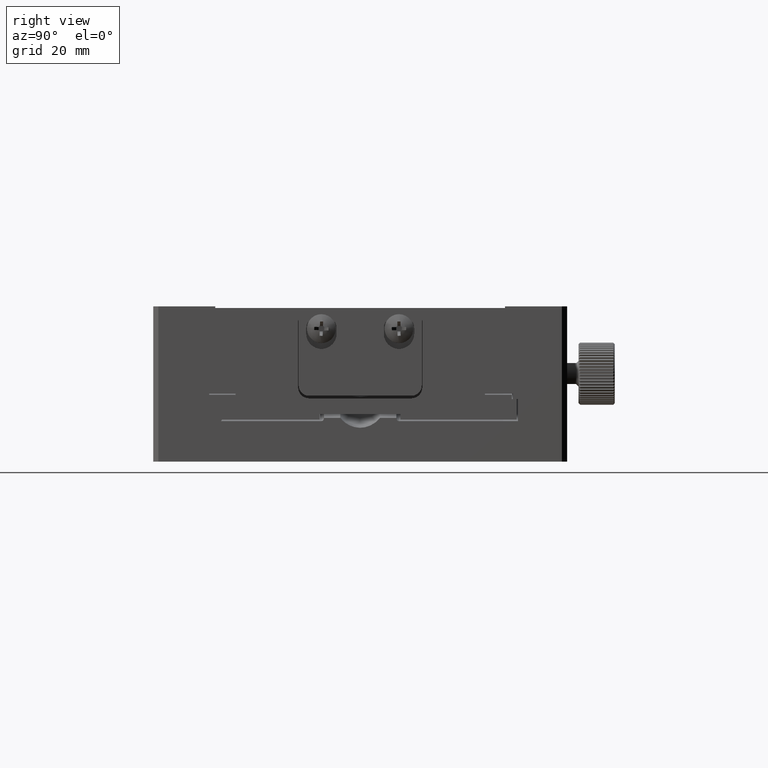
[diagram: clean part render]
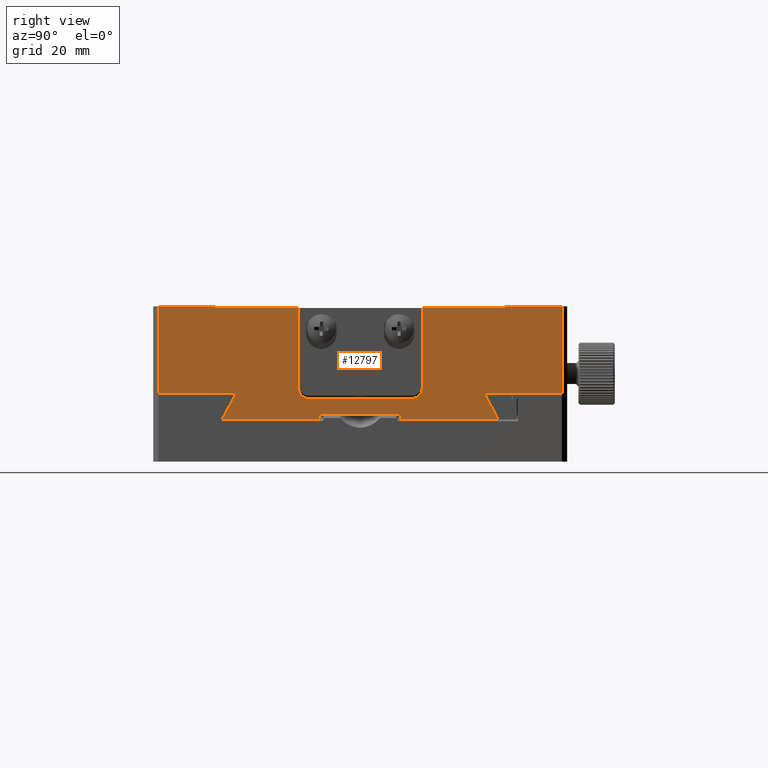
[diagram: same view with one face highlighted and labeled with its STEP entity id]
A machine part, right view. The second image highlights one B-rep face of the part: STEP entity #12797.
In plain terms, the highlighted planar face has unit normal (-1, 0, 0).
Its self-contained STEP definition (entity closure, byte-faithful):
#101 = CARTESIAN_POINT ( 'NONE',  ( 40.00000000000000000, 12.00000000000000355, 90.00000000000001421 ) ) ;
#330 = VECTOR ( 'NONE', #50406, 1000.000000000000000 ) ;
#1248 = CARTESIAN_POINT ( 'NONE',  ( 40.00000000000000000, 24.00000000000001421, 113.1370849898476223 ) ) ;
#1259 = ORIENTED_EDGE ( 'NONE', *, *, #34641, .F. ) ;
#1617 = VERTEX_POINT ( 'NONE', #42292 ) ;
#2359 = EDGE_CURVE ( 'NONE', #38159, #36835, #23862, .T. ) ;
#2661 = ORIENTED_EDGE ( 'NONE', *, *, #77425, .F. ) ;
#2670 = ORIENTED_EDGE ( 'NONE', *, *, #13924, .F. ) ;
#4132 = ORIENTED_EDGE ( 'NONE', *, *, #54658, .F. ) ;
#4548 = DIRECTION ( 'NONE',  ( -0.000000000000000000, -1.000000000000000000, 0.000000000000000000 ) ) ;
#5288 = ORIENTED_EDGE ( 'NONE', *, *, #64259, .F. ) ;
#5879 = VERTEX_POINT ( 'NONE', #44844 ) ;
#5979 = DIRECTION ( 'NONE',  ( 0.000000000000000000, 1.000000000000000000, -0.000000000000000000 ) ) ;
#7979 = VECTOR ( 'NONE', #16076, 1000.000000000000000 ) ;
#9200 = CARTESIAN_POINT ( 'NONE',  ( 40.00000000000000000, -39.99999999999998579, 108.1392158284865701 ) ) ;
#9380 = B_SPLINE_CURVE_WITH_KNOTS ( 'NONE', 3,
 ( #45992, #33275, #31916, #54124 ),
 .UNSPECIFIED., .F., .F.,
 ( 4, 4 ),
 ( 0.000000000000000000, 0.005687005318040170773 ),
 .UNSPECIFIED. ) ;
#9669 = LINE ( 'NONE', #9200, #57864 ) ;
#10589 = CARTESIAN_POINT ( 'NONE',  ( 40.00000000000000000, 39.00000000000000711, 113.1370849898476223 ) ) ;
#10722 = EDGE_CURVE ( 'NONE', #17061, #86930, #53438, .T. ) ;
#11202 = VERTEX_POINT ( 'NONE', #20922 ) ;
#11369 = CARTESIAN_POINT ( 'NONE',  ( 40.00000000000000000, -39.99999999999998579, 109.2048075864794185 ) ) ;
#11458 = ORIENTED_EDGE ( 'NONE', *, *, #53308, .F. ) ;
#12171 = EDGE_CURVE ( 'NONE', #68739, #11202, #34589, .T. ) ;
#12482 = EDGE_LOOP ( 'NONE', ( #71743, #42520, #72628, #4132, #37822, #44977, #14948, #1259, #30182, #81857, #51012, #47749, #11458, #22594, #28148, #2661, #38043, #77541, #65836, #32022, #2670, #5288 ) ) ;
#12797 = ADVANCED_FACE ( 'NONE', ( #49195 ), #22426, .F. ) ;
#13110 = CARTESIAN_POINT ( 'NONE',  ( 40.00000000000000711, 9.899999999999998579, 114.3000000000000114 ) ) ;
#13924 = EDGE_CURVE ( 'NONE', #30394, #82356, #16933, .T. ) ;
#14480 = CARTESIAN_POINT ( 'NONE',  ( 40.00000000000000000, 39.00000000000001421, 90.00000000000001421 ) ) ;
#14948 = ORIENTED_EDGE ( 'NONE', *, *, #63549, .F. ) ;
#15482 = CARTESIAN_POINT ( 'NONE',  ( 40.00000000000000000, 24.00000000000001421, 113.1370849898476223 ) ) ;
#15638 = AXIS2_PLACEMENT_3D ( 'NONE', #60000, #26447, #75823 ) ;
#16076 = DIRECTION ( 'NONE',  ( -0.000000000000000000, 0.000000000000000000, 1.000000000000000000 ) ) ;
#16424 = VECTOR ( 'NONE', #85017, 1000.000000000000000 ) ;
#16933 = LINE ( 'NONE', #44633, #26561 ) ;
#17061 = VERTEX_POINT ( 'NONE', #41828 ) ;
#17495 = VECTOR ( 'NONE', #21308, 1000.000000000000000 ) ;
#17724 = EDGE_CURVE ( 'NONE', #18715, #70894, #67724, .T. ) ;
#17739 = LINE ( 'NONE', #11369, #53039 ) ;
#18715 = VERTEX_POINT ( 'NONE', #32119 ) ;
#18850 = CARTESIAN_POINT ( 'NONE',  ( 40.00000000000000000, -39.99999999999998579, 130.0000000000000000 ) ) ;
#19611 = CARTESIAN_POINT ( 'NONE',  ( 40.00000000000000000, -39.99999999999998579, 130.0000000000000000 ) ) ;
#20657 = CARTESIAN_POINT ( 'NONE',  ( 40.00000000000000711, 6.938893903907228378E-15, 129.7000000000000171 ) ) ;
#20922 = CARTESIAN_POINT ( 'NONE',  ( 40.00000000000000000, 12.00000000000000355, 129.7000000000000171 ) ) ;
#21308 = DIRECTION ( 'NONE',  ( -0.000000000000000000, 0.000000000000000000, 1.000000000000000000 ) ) ;
#21589 = EDGE_CURVE ( 'NONE', #78508, #81294, #77701, .T. ) ;
#22193 = DIRECTION ( 'NONE',  ( -0.000000000000000000, -1.000000000000000000, 0.000000000000000000 ) ) ;
#22426 = PLANE ( 'NONE',  #36615 ) ;
#22594 = ORIENTED_EDGE ( 'NONE', *, *, #47933, .F. ) ;
#23811 = VECTOR ( 'NONE', #81695, 1000.000000000000000 ) ;
#23862 = B_SPLINE_CURVE_WITH_KNOTS ( 'NONE', 3,
 ( #1248, #28927, #36192, #57907 ),
 .UNSPECIFIED., .F., .F.,
 ( 4, 4 ),
 ( 1.551583845779545699E-17, 0.005687005318040152559 ),
 .UNSPECIFIED. ) ;
#24568 = EDGE_CURVE ( 'NONE', #57780, #5879, #76362, .T. ) ;
#25325 = DIRECTION ( 'NONE',  ( 0.000000000000000000, 1.000000000000000000, -0.000000000000000000 ) ) ;
#25746 = CARTESIAN_POINT ( 'NONE',  ( 40.00000000000000000, 28.00000000000001776, 129.7000000000000171 ) ) ;
#25859 = DIRECTION ( 'NONE',  ( 1.000000000000000000, 0.000000000000000000, 0.000000000000000000 ) ) ;
#26017 = LINE ( 'NONE', #79982, #58206 ) ;
#26447 = DIRECTION ( 'NONE',  ( 1.000000000000000000, -0.000000000000000000, -0.000000000000000000 ) ) ;
#26561 = VECTOR ( 'NONE', #38250, 1000.000000000000000 ) ;
#28148 = ORIENTED_EDGE ( 'NONE', *, *, #12171, .F. ) ;
#28927 = CARTESIAN_POINT ( 'NONE',  ( 40.00000000000000000, 24.90630286100780211, 111.4721003184273798 ) ) ;
#30182 = ORIENTED_EDGE ( 'NONE', *, *, #2359, .F. ) ;
#30394 = VERTEX_POINT ( 'NONE', #56761 ) ;
#30751 = VERTEX_POINT ( 'NONE', #64928 ) ;
#31127 = VECTOR ( 'NONE', #69576, 1000.000000000000000 ) ;
#31916 = CARTESIAN_POINT ( 'NONE',  ( 40.00000000000000000, -24.90630286100778434, 111.4721003184273940 ) ) ;
#32022 = ORIENTED_EDGE ( 'NONE', *, *, #57174, .F. ) ;
#32119 = CARTESIAN_POINT ( 'NONE',  ( 40.00000000000000000, 28.00000000000001421, 130.0000000000000000 ) ) ;
#32599 = CARTESIAN_POINT ( 'NONE',  ( 40.00000000000000000, -39.99999999999998579, 112.2000000000000028 ) ) ;
#33195 = LINE ( 'NONE', #60846, #23811 ) ;
#33275 = CARTESIAN_POINT ( 'NONE',  ( 40.00000000000000000, -25.81089446767058959, 109.8061827040926772 ) ) ;
#33503 = VECTOR ( 'NONE', #25325, 1000.000000000000000 ) ;
#34589 = LINE ( 'NONE', #101, #330 ) ;
#34641 = EDGE_CURVE ( 'NONE', #36835, #68497, #9669, .T. ) ;
#34945 = CARTESIAN_POINT ( 'NONE',  ( 40.00000000000000711, 12.00000000000000000, 114.3000000000000114 ) ) ;
#35106 = EDGE_CURVE ( 'NONE', #70894, #73354, #55299, .T. ) ;
#35616 = DIRECTION ( 'NONE',  ( -1.000000000000000000, 0.000000000000000000, 0.000000000000000000 ) ) ;
#36192 = CARTESIAN_POINT ( 'NONE',  ( 40.00000000000000000, 25.81089446767060025, 109.8061827040926772 ) ) ;
#36615 = AXIS2_PLACEMENT_3D ( 'NONE', #84092, #35616, #63285 ) ;
#36835 = VERTEX_POINT ( 'NONE', #73658 ) ;
#36843 = CARTESIAN_POINT ( 'NONE',  ( 40.00000000000000000, 7.800000000000013145, 108.1392158284865701 ) ) ;
#36891 = DIRECTION ( 'NONE',  ( -0.000000000000000000, -0.000000000000000000, -1.000000000000000000 ) ) ;
#37822 = ORIENTED_EDGE ( 'NONE', *, *, #39444, .F. ) ;
#37850 = VECTOR ( 'NONE', #88237, 1000.000000000000000 ) ;
#38043 = ORIENTED_EDGE ( 'NONE', *, *, #10722, .F. ) ;
#38159 = VERTEX_POINT ( 'NONE', #15482 ) ;
#38250 = DIRECTION ( 'NONE',  ( -0.000000000000000000, -0.000000000000000000, -1.000000000000000000 ) ) ;
#38727 = DIRECTION ( 'NONE',  ( -0.000000000000000000, 1.000000000000000000, 0.000000000000000000 ) ) ;
#39408 = VECTOR ( 'NONE', #48332, 1000.000000000000000 ) ;
#39444 = EDGE_CURVE ( 'NONE', #1617, #30751, #33195, .T. ) ;
#39638 = VECTOR ( 'NONE', #36891, 1000.000000000000000 ) ;
#40805 = VERTEX_POINT ( 'NONE', #25746 ) ;
#41716 = EDGE_CURVE ( 'NONE', #73354, #38159, #83079, .T. ) ;
#41828 = CARTESIAN_POINT ( 'NONE',  ( 40.00000000000000711, -9.899999999999998579, 112.2000000000000028 ) ) ;
#41924 = CARTESIAN_POINT ( 'NONE',  ( 40.00000000000000000, -38.99999999999996447, 90.00000000000001421 ) ) ;
#42286 = DIRECTION ( 'NONE',  ( -0.000000000000000000, -1.000000000000000000, 0.000000000000000000 ) ) ;
#42292 = CARTESIAN_POINT ( 'NONE',  ( 40.00000000000000000, -7.799999999999986500, 109.2048075864794185 ) ) ;
#42520 = ORIENTED_EDGE ( 'NONE', *, *, #77903, .F. ) ;
#44429 = CARTESIAN_POINT ( 'NONE',  ( 40.00000000000000000, -26.71354626519124054, 108.1392158284865701 ) ) ;
#44633 = CARTESIAN_POINT ( 'NONE',  ( 40.00000000000000000, -27.99999999999999645, 90.00000000000001421 ) ) ;
#44844 = CARTESIAN_POINT ( 'NONE',  ( 40.00000000000000000, -38.99999999999996447, 130.0000000000000000 ) ) ;
#44977 = ORIENTED_EDGE ( 'NONE', *, *, #55046, .F. ) ;
#45457 = AXIS2_PLACEMENT_3D ( 'NONE', #13110, #25859, #82066 ) ;
#45992 = CARTESIAN_POINT ( 'NONE',  ( 40.00000000000000000, -26.71354626519124054, 108.1392158284865701 ) ) ;
#47749 = ORIENTED_EDGE ( 'NONE', *, *, #17724, .F. ) ;
#47897 = EDGE_CURVE ( 'NONE', #67664, #53159, #9380, .T. ) ;
#47933 = EDGE_CURVE ( 'NONE', #11202, #40805, #26017, .T. ) ;
#48225 = CARTESIAN_POINT ( 'NONE',  ( 40.00000000000000711, -38.99999999999996447, 113.1370849898476223 ) ) ;
#48332 = DIRECTION ( 'NONE',  ( -0.000000000000000000, 1.000000000000000000, 0.000000000000000000 ) ) ;
#48428 = CARTESIAN_POINT ( 'NONE',  ( 40.00000000000000000, 28.00000000000001776, 129.7000000000000171 ) ) ;
#49195 = FACE_OUTER_BOUND ( 'NONE', #12482, .T. ) ;
#49396 = DIRECTION ( 'NONE',  ( -0.000000000000000000, -0.000000000000000000, -1.000000000000000000 ) ) ;
#50406 = DIRECTION ( 'NONE',  ( 0.000000000000000000, 0.000000000000000000, 1.000000000000000000 ) ) ;
#50460 = CARTESIAN_POINT ( 'NONE',  ( 40.00000000000000711, -12.00000000000000000, 114.3000000000000114 ) ) ;
#50546 = LINE ( 'NONE', #48428, #7979 ) ;
#50962 = EDGE_CURVE ( 'NONE', #81294, #17061, #73496, .T. ) ;
#51012 = ORIENTED_EDGE ( 'NONE', *, *, #35106, .F. ) ;
#53039 = VECTOR ( 'NONE', #4548, 1000.000000000000000 ) ;
#53159 = VERTEX_POINT ( 'NONE', #73846 ) ;
#53308 = EDGE_CURVE ( 'NONE', #40805, #18715, #50546, .T. ) ;
#53438 = LINE ( 'NONE', #32599, #33503 ) ;
#54124 = CARTESIAN_POINT ( 'NONE',  ( 40.00000000000000711, -24.00000000000000000, 113.1370849898476223 ) ) ;
#54250 = LINE ( 'NONE', #20657, #39408 ) ;
#54584 = CARTESIAN_POINT ( 'NONE',  ( 40.00000000000000711, 9.899999999999998579, 112.2000000000000028 ) ) ;
#54658 = EDGE_CURVE ( 'NONE', #30751, #67664, #78856, .T. ) ;
#55046 = EDGE_CURVE ( 'NONE', #72604, #1617, #17739, .T. ) ;
#55299 = LINE ( 'NONE', #14480, #72410 ) ;
#55776 = CARTESIAN_POINT ( 'NONE',  ( 40.00000000000000000, 7.800000000000013145, -115.2999999999999972 ) ) ;
#56761 = CARTESIAN_POINT ( 'NONE',  ( 40.00000000000000711, -27.99999999999999645, 130.0000000000000000 ) ) ;
#57114 = CARTESIAN_POINT ( 'NONE',  ( 40.00000000000000000, -39.99999999999998579, 108.1392158284865701 ) ) ;
#57174 = EDGE_CURVE ( 'NONE', #82356, #78508, #54250, .T. ) ;
#57780 = VERTEX_POINT ( 'NONE', #48225 ) ;
#57864 = VECTOR ( 'NONE', #78602, 1000.000000000000000 ) ;
#57907 = CARTESIAN_POINT ( 'NONE',  ( 40.00000000000000000, 26.71354626519124409, 108.1392158284865701 ) ) ;
#58206 = VECTOR ( 'NONE', #38727, 1000.000000000000000 ) ;
#60000 = CARTESIAN_POINT ( 'NONE',  ( 40.00000000000000711, -9.899999999999998579, 114.3000000000000114 ) ) ;
#60210 = VECTOR ( 'NONE', #42286, 1000.000000000000000 ) ;
#60846 = CARTESIAN_POINT ( 'NONE',  ( 40.00000000000000000, -7.799999999999985612, -115.2999999999999972 ) ) ;
#62600 = LINE ( 'NONE', #55776, #17495 ) ;
#62699 = CARTESIAN_POINT ( 'NONE',  ( 40.00000000000000000, -39.99999999999998579, 113.1370849898476223 ) ) ;
#63285 = DIRECTION ( 'NONE',  ( 0.000000000000000000, 0.000000000000000000, 1.000000000000000000 ) ) ;
#63549 = EDGE_CURVE ( 'NONE', #68497, #72604, #62600, .T. ) ;
#64259 = EDGE_CURVE ( 'NONE', #5879, #30394, #80971, .T. ) ;
#64621 = VECTOR ( 'NONE', #22193, 1000.000000000000000 ) ;
#64862 = CARTESIAN_POINT ( 'NONE',  ( 40.00000000000000000, -12.00000000000000000, 129.7000000000000171 ) ) ;
#64928 = CARTESIAN_POINT ( 'NONE',  ( 40.00000000000000000, -7.799999999999985612, 108.1392158284865701 ) ) ;
#65706 = CARTESIAN_POINT ( 'NONE',  ( 40.00000000000000000, 39.00000000000001421, 130.0000000000000000 ) ) ;
#65836 = ORIENTED_EDGE ( 'NONE', *, *, #21589, .F. ) ;
#67150 = CIRCLE ( 'NONE', #45457, 2.100000000000004530 ) ;
#67664 = VERTEX_POINT ( 'NONE', #44429 ) ;
#67724 = LINE ( 'NONE', #19611, #87709 ) ;
#68497 = VERTEX_POINT ( 'NONE', #36843 ) ;
#68739 = VERTEX_POINT ( 'NONE', #34945 ) ;
#69576 = DIRECTION ( 'NONE',  ( 0.000000000000000000, 0.000000000000000000, 1.000000000000000000 ) ) ;
#70894 = VERTEX_POINT ( 'NONE', #65706 ) ;
#71740 = CARTESIAN_POINT ( 'NONE',  ( 40.00000000000000000, 7.800000000000014033, 109.2048075864794185 ) ) ;
#71743 = ORIENTED_EDGE ( 'NONE', *, *, #24568, .F. ) ;
#71764 = CARTESIAN_POINT ( 'NONE',  ( 40.00000000000000711, -27.99999999999999645, 129.7000000000000171 ) ) ;
#71857 = LINE ( 'NONE', #78202, #16424 ) ;
#72410 = VECTOR ( 'NONE', #49396, 1000.000000000000000 ) ;
#72604 = VERTEX_POINT ( 'NONE', #71740 ) ;
#72628 = ORIENTED_EDGE ( 'NONE', *, *, #47897, .F. ) ;
#73354 = VERTEX_POINT ( 'NONE', #10589 ) ;
#73496 = CIRCLE ( 'NONE', #15638, 2.100000000000004530 ) ;
#73658 = CARTESIAN_POINT ( 'NONE',  ( 40.00000000000000000, 26.71354626519124409, 108.1392158284865701 ) ) ;
#73846 = CARTESIAN_POINT ( 'NONE',  ( 40.00000000000000711, -24.00000000000000000, 113.1370849898476223 ) ) ;
#75823 = DIRECTION ( 'NONE',  ( 0.000000000000000000, 0.000000000000000000, 1.000000000000000000 ) ) ;
#76362 = LINE ( 'NONE', #41924, #31127 ) ;
#77425 = EDGE_CURVE ( 'NONE', #86930, #68739, #67150, .T. ) ;
#77541 = ORIENTED_EDGE ( 'NONE', *, *, #50962, .F. ) ;
#77701 = LINE ( 'NONE', #84946, #39638 ) ;
#77903 = EDGE_CURVE ( 'NONE', #53159, #57780, #71857, .T. ) ;
#78202 = CARTESIAN_POINT ( 'NONE',  ( 40.00000000000000711, 0.000000000000000000, 113.1370849898476223 ) ) ;
#78508 = VERTEX_POINT ( 'NONE', #64862 ) ;
#78602 = DIRECTION ( 'NONE',  ( -0.000000000000000000, -1.000000000000000000, 0.000000000000000000 ) ) ;
#78856 = LINE ( 'NONE', #57114, #64621 ) ;
#79982 = CARTESIAN_POINT ( 'NONE',  ( 40.00000000000000000, 6.938893903907228378E-15, 129.7000000000000171 ) ) ;
#80971 = LINE ( 'NONE', #18850, #37850 ) ;
#81294 = VERTEX_POINT ( 'NONE', #50460 ) ;
#81695 = DIRECTION ( 'NONE',  ( -0.000000000000000000, 0.000000000000000000, -1.000000000000000000 ) ) ;
#81857 = ORIENTED_EDGE ( 'NONE', *, *, #41716, .F. ) ;
#82066 = DIRECTION ( 'NONE',  ( 0.000000000000000000, 0.000000000000000000, -1.000000000000000000 ) ) ;
#82356 = VERTEX_POINT ( 'NONE', #71764 ) ;
#83079 = LINE ( 'NONE', #62699, #60210 ) ;
#84092 = CARTESIAN_POINT ( 'NONE',  ( 40.00000000000000000, -39.99999999999998579, 90.00000000000001421 ) ) ;
#84946 = CARTESIAN_POINT ( 'NONE',  ( 40.00000000000000000, -12.00000000000000000, 90.00000000000001421 ) ) ;
#85017 = DIRECTION ( 'NONE',  ( -0.000000000000000000, -1.000000000000000000, -0.000000000000000000 ) ) ;
#86930 = VERTEX_POINT ( 'NONE', #54584 ) ;
#87709 = VECTOR ( 'NONE', #5979, 1000.000000000000000 ) ;
#88237 = DIRECTION ( 'NONE',  ( 0.000000000000000000, 1.000000000000000000, -0.000000000000000000 ) ) ;